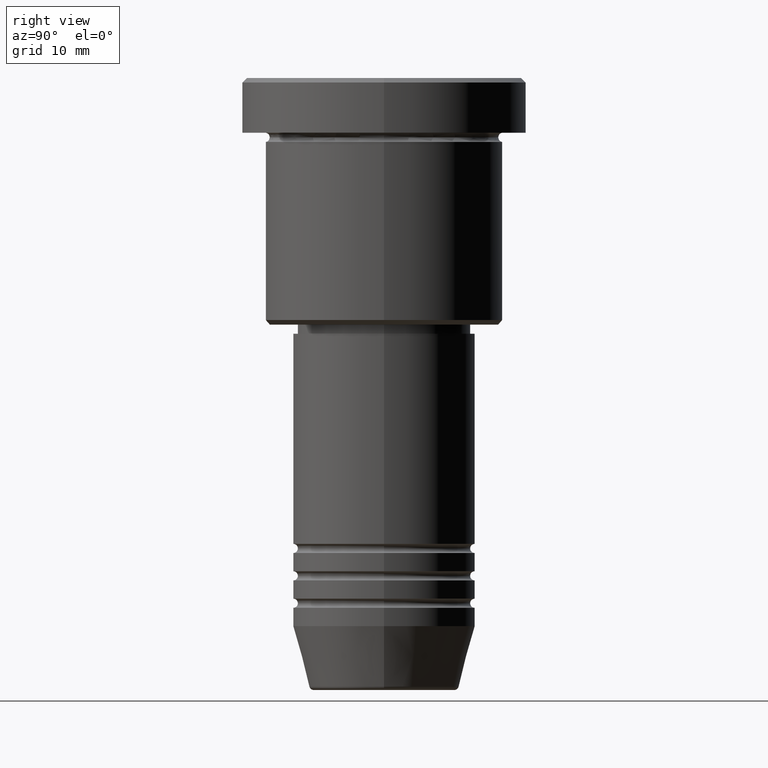
[diagram: clean part render]
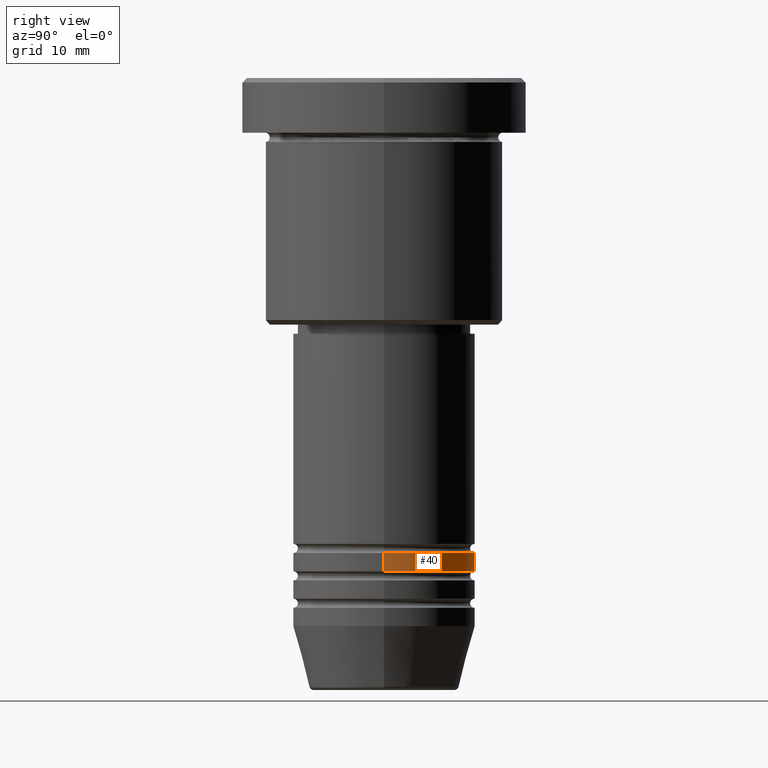
[diagram: same view with one face highlighted and labeled with its STEP entity id]
A machine part, right view. The second image highlights one B-rep face of the part: STEP entity #40.
In plain terms, the highlighted cylindrical surface (partial cylindrical patch) has radius 10 mm, axis along (-0, -0, 1).
Its self-contained STEP definition (entity closure, byte-faithful):
#9 = VECTOR ( 'NONE', #204, 1000.000000000000000 ) ;
#23 = CARTESIAN_POINT ( 'NONE',  ( 0.000000000000000000, 0.000000000000000000, -51.99999999999997868 ) ) ;
#37 = CARTESIAN_POINT ( 'NONE',  ( 0.000000000000000000, 0.000000000000000000, 0.000000000000000000 ) ) ;
#40 = ADVANCED_FACE ( 'NONE', ( #650 ), #663, .T. ) ;
#54 = EDGE_CURVE ( 'NONE', #1106, #804, #243, .T. ) ;
#116 = EDGE_LOOP ( 'NONE', ( #807, #301, #769, #698 ) ) ;
#127 = AXIS2_PLACEMENT_3D ( 'NONE', #23, #373, #389 ) ;
#204 = DIRECTION ( 'NONE',  ( -0.000000000000000000, -0.000000000000000000, 1.000000000000000000 ) ) ;
#243 = CIRCLE ( 'NONE', #127, 10.00000000000000000 ) ;
#286 = LINE ( 'NONE', #1120, #9 ) ;
#299 = CIRCLE ( 'NONE', #860, 10.00000000000000000 ) ;
#301 = ORIENTED_EDGE ( 'NONE', *, *, #1102, .T. ) ;
#315 = AXIS2_PLACEMENT_3D ( 'NONE', #37, #1028, #937 ) ;
#373 = DIRECTION ( 'NONE',  ( -0.000000000000000000, -0.000000000000000000, 1.000000000000000000 ) ) ;
#389 = DIRECTION ( 'NONE',  ( 1.000000000000000000, 0.000000000000000000, 0.000000000000000000 ) ) ;
#422 = CARTESIAN_POINT ( 'NONE',  ( 10.00000000000000000, 0.000000000000000000, -53.99999999999997868 ) ) ;
#427 = LINE ( 'NONE', #597, #839 ) ;
#597 = CARTESIAN_POINT ( 'NONE',  ( -10.00000000000000000, 1.224646799147353256E-15, 0.000000000000000000 ) ) ;
#650 = FACE_OUTER_BOUND ( 'NONE', #116, .T. ) ;
#663 = CYLINDRICAL_SURFACE ( 'NONE', #315, 10.00000000000000000 ) ;
#694 = CARTESIAN_POINT ( 'NONE',  ( -10.00000000000000000, 1.224646799147353256E-15, -53.99999999999997868 ) ) ;
#698 = ORIENTED_EDGE ( 'NONE', *, *, #991, .F. ) ;
#769 = ORIENTED_EDGE ( 'NONE', *, *, #54, .F. ) ;
#804 = VERTEX_POINT ( 'NONE', #1091 ) ;
#807 = ORIENTED_EDGE ( 'NONE', *, *, #953, .T. ) ;
#839 = VECTOR ( 'NONE', #1161, 1000.000000000000000 ) ;
#860 = AXIS2_PLACEMENT_3D ( 'NONE', #1117, #1037, #862 ) ;
#862 = DIRECTION ( 'NONE',  ( 1.000000000000000000, 0.000000000000000000, 0.000000000000000000 ) ) ;
#937 = DIRECTION ( 'NONE',  ( 1.000000000000000000, 0.000000000000000000, 0.000000000000000000 ) ) ;
#953 = EDGE_CURVE ( 'NONE', #1027, #1103, #299, .T. ) ;
#991 = EDGE_CURVE ( 'NONE', #1027, #1106, #286, .T. ) ;
#1027 = VERTEX_POINT ( 'NONE', #422 ) ;
#1028 = DIRECTION ( 'NONE',  ( -0.000000000000000000, -0.000000000000000000, 1.000000000000000000 ) ) ;
#1037 = DIRECTION ( 'NONE',  ( -0.000000000000000000, -0.000000000000000000, 1.000000000000000000 ) ) ;
#1076 = CARTESIAN_POINT ( 'NONE',  ( 10.00000000000000000, 0.000000000000000000, -51.99999999999997868 ) ) ;
#1091 = CARTESIAN_POINT ( 'NONE',  ( -10.00000000000000000, 1.224646799147353256E-15, -51.99999999999997868 ) ) ;
#1102 = EDGE_CURVE ( 'NONE', #1103, #804, #427, .T. ) ;
#1103 = VERTEX_POINT ( 'NONE', #694 ) ;
#1106 = VERTEX_POINT ( 'NONE', #1076 ) ;
#1117 = CARTESIAN_POINT ( 'NONE',  ( 0.000000000000000000, 0.000000000000000000, -53.99999999999997868 ) ) ;
#1120 = CARTESIAN_POINT ( 'NONE',  ( 10.00000000000000000, 0.000000000000000000, 0.000000000000000000 ) ) ;
#1161 = DIRECTION ( 'NONE',  ( -0.000000000000000000, -0.000000000000000000, 1.000000000000000000 ) ) ;